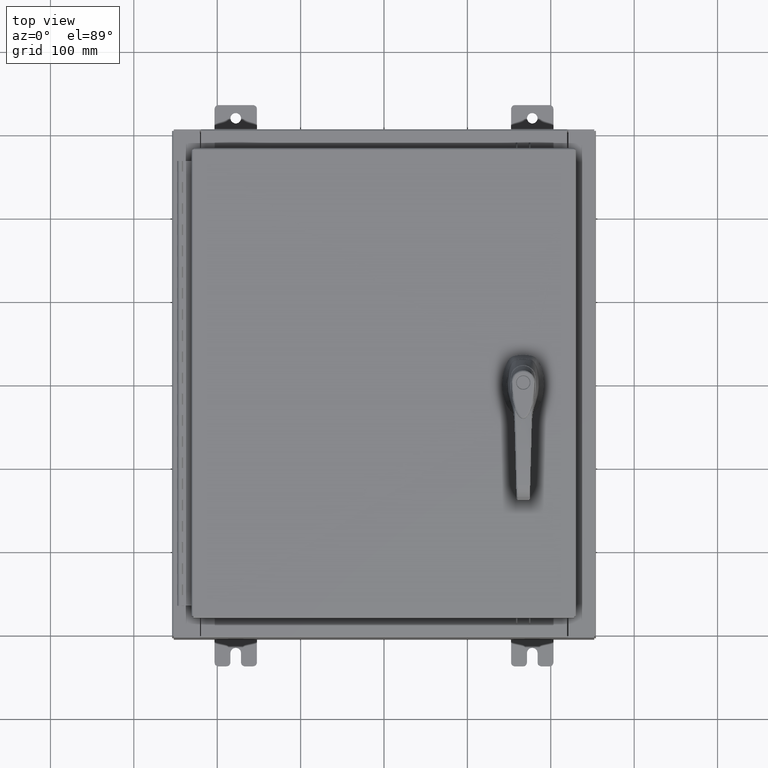
[diagram: clean part render]
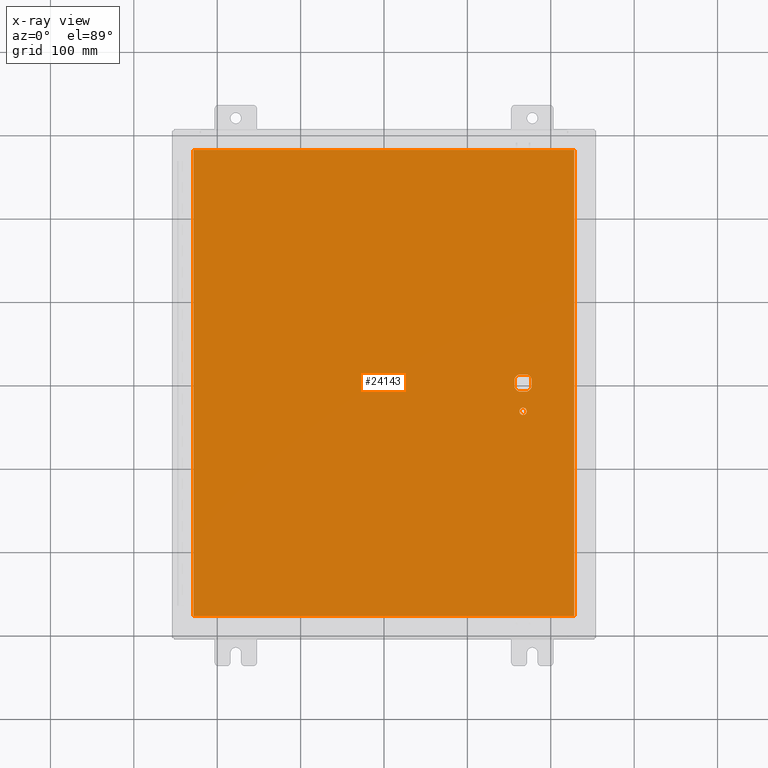
[diagram: x-ray — body ghosted, one internal face saturated and labeled with its STEP entity id]
A machine part, top view, then the same camera in x-ray: the body is ghosted and one INTERNAL B-rep face — a face not visible from any outside direction — is saturated and labeled: STEP entity #24143.
In plain terms, the highlighted planar face has unit normal (0, 0, -1).
Its self-contained STEP definition (entity closure, byte-faithful):
#430 = VECTOR ( 'NONE', #83718, 39.37007874015748100 ) ;
#664 = DIRECTION ( 'NONE',  ( -0.0000000000000000000, -0.0000000000000000000, 1.000000000000000000 ) ) ;
#851 = EDGE_CURVE ( 'NONE', #79211, #57351, #22076, .T. ) ;
#1527 = EDGE_CURVE ( 'NONE', #104537, #16535, #100204, .T. ) ;
#1552 = VECTOR ( 'NONE', #57092, 39.37007874015748100 ) ;
#4109 = EDGE_CURVE ( 'NONE', #53771, #105646, #69650, .T. ) ;
#5771 = DIRECTION ( 'NONE',  ( -1.000000000000000000, 0.0000000000000000000, -0.0000000000000000000 ) ) ;
#11666 = CARTESIAN_POINT ( 'NONE',  ( 6.749499999999998500, -1.338000000000000100, -0.07470000000000003000 ) ) ;
#12451 = EDGE_CURVE ( 'NONE', #105646, #69104, #37058, .T. ) ;
#13335 = FACE_OUTER_BOUND ( 'NONE', #55856, .T. ) ;
#13894 = ORIENTED_EDGE ( 'NONE', *, *, #46579, .F. ) ;
#14673 = EDGE_LOOP ( 'NONE', ( #39905, #27111, #73608, #61158, #56399, #78134, #95474, #66617 ) ) ;
#16535 = VERTEX_POINT ( 'NONE', #67892 ) ;
#17449 = VERTEX_POINT ( 'NONE', #11666 ) ;
#18328 = DIRECTION ( 'NONE',  ( -0.0000000000000000000, -0.0000000000000000000, 1.000000000000000000 ) ) ;
#18975 = AXIS2_PLACEMENT_3D ( 'NONE', #53118, #664, #61918 ) ;
#19230 = CARTESIAN_POINT ( 'NONE',  ( 6.577999999999998500, 0.0000000000000000000, -0.07470000000000003000 ) ) ;
#21080 = LINE ( 'NONE', #42783, #111708 ) ;
#22076 = LINE ( 'NONE', #33792, #1552 ) ;
#22853 = LINE ( 'NONE', #104713, #95589 ) ;
#24143 = ADVANCED_FACE ( 'NONE', ( #36676, #13335, #106700 ), #101627, .T. ) ;
#25422 = DIRECTION ( 'NONE',  ( -0.0000000000000000000, -0.0000000000000000000, 1.000000000000000000 ) ) ;
#25876 = CARTESIAN_POINT ( 'NONE',  ( 8.990299999999997700, -11.00630000000000000, -0.07470000000000021100 ) ) ;
#27111 = ORIENTED_EDGE ( 'NONE', *, *, #59756, .F. ) ;
#28044 = DIRECTION ( 'NONE',  ( -1.000000000000000000, 0.0000000000000000000, 0.0000000000000000000 ) ) ;
#29436 = CARTESIAN_POINT ( 'NONE',  ( 6.980999999999924400, 0.2002273707563080300, -0.07470000000000003000 ) ) ;
#31505 = AXIS2_PLACEMENT_3D ( 'NONE', #103066, #50488, #111885 ) ;
#31620 = LINE ( 'NONE', #49703, #98823 ) ;
#32010 = CARTESIAN_POINT ( 'NONE',  ( 6.377772629243688500, -0.4029999999999250300, -0.07470000000000003000 ) ) ;
#32040 = EDGE_CURVE ( 'NONE', #17449, #32776, #66808, .T. ) ;
#32190 = AXIS2_PLACEMENT_3D ( 'NONE', #34262, #95619, #43040 ) ;
#32776 = VERTEX_POINT ( 'NONE', #69033 ) ;
#33792 = CARTESIAN_POINT ( 'NONE',  ( -8.990300000000001300, -11.00630000000000100, -0.07469999999999910000 ) ) ;
#34262 = CARTESIAN_POINT ( 'NONE',  ( 6.577999999999998500, 0.0000000000000000000, -0.07470000000000003000 ) ) ;
#34685 = DIRECTION ( 'NONE',  ( 0.0000000000000000000, 1.000000000000000000, 0.0000000000000000000 ) ) ;
#35624 = CARTESIAN_POINT ( 'NONE',  ( 6.175000000000072700, -0.2002273707563079800, -0.07470000000000003000 ) ) ;
#36676 = FACE_BOUND ( 'NONE', #103046, .T. ) ;
#37058 = LINE ( 'NONE', #100789, #80974 ) ;
#37479 = CARTESIAN_POINT ( 'NONE',  ( -8.990299999999997700, -11.00630000000000100, -0.07470000000000000300 ) ) ;
#37948 = CIRCLE ( 'NONE', #32190, 0.4499999999999156900 ) ;
#39905 = ORIENTED_EDGE ( 'NONE', *, *, #51026, .T. ) ;
#40622 = CARTESIAN_POINT ( 'NONE',  ( 0.0000000000000000000, 0.0000000000000000000, -0.07470000000000000300 ) ) ;
#40631 = VECTOR ( 'NONE', #34685, 39.37007874015748100 ) ;
#42783 = CARTESIAN_POINT ( 'NONE',  ( -8.990299999999999500, 11.00630000000000100, -0.07470000000000019700 ) ) ;
#43040 = DIRECTION ( 'NONE',  ( -1.000000000000000000, 0.0000000000000000000, 0.0000000000000000000 ) ) ;
#44221 = AXIS2_PLACEMENT_3D ( 'NONE', #70878, #18328, #79682 ) ;
#46096 = LINE ( 'NONE', #25876, #40631 ) ;
#46579 = EDGE_CURVE ( 'NONE', #16535, #79211, #21080, .T. ) ;
#46968 = LINE ( 'NONE', #57614, #430 ) ;
#47090 = AXIS2_PLACEMENT_3D ( 'NONE', #77967, #25422, #86789 ) ;
#48135 = VERTEX_POINT ( 'NONE', #85450 ) ;
#48200 = DIRECTION ( 'NONE',  ( 1.000000000000000000, 0.0000000000000000000, 0.0000000000000000000 ) ) ;
#49703 = CARTESIAN_POINT ( 'NONE',  ( 6.175000000000072700, 0.0000000000000000000, -0.07470000000000003000 ) ) ;
#50488 = DIRECTION ( 'NONE',  ( -0.0000000000000000000, -0.0000000000000000000, 1.000000000000000000 ) ) ;
#50957 = CIRCLE ( 'NONE', #89427, 0.4499999999999156900 ) ;
#51026 = EDGE_CURVE ( 'NONE', #69104, #48135, #50957, .T. ) ;
#51626 = DIRECTION ( 'NONE',  ( 0.0000000000000000000, -1.000000000000000000, 0.0000000000000000000 ) ) ;
#53118 = CARTESIAN_POINT ( 'NONE',  ( 6.577999999999998500, -1.338000000000000100, -0.07470000000000003000 ) ) ;
#53458 = ORIENTED_EDGE ( 'NONE', *, *, #109512, .F. ) ;
#53771 = VERTEX_POINT ( 'NONE', #35624 ) ;
#55245 = CIRCLE ( 'NONE', #18975, 0.1715000000000000700 ) ;
#55856 = EDGE_LOOP ( 'NONE', ( #53458, #90766, #13894, #103521 ) ) ;
#56399 = ORIENTED_EDGE ( 'NONE', *, *, #82009, .T. ) ;
#57092 = DIRECTION ( 'NONE',  ( 1.000000000000000000, -0.0000000000000000000, -0.0000000000000000000 ) ) ;
#57351 = VERTEX_POINT ( 'NONE', #110071 ) ;
#57392 = CARTESIAN_POINT ( 'NONE',  ( 8.990299999999997700, 11.00630000000000000, -0.07470000000000000300 ) ) ;
#57614 = CARTESIAN_POINT ( 'NONE',  ( 6.980999999999924400, 0.0000000000000000000, -0.07470000000000003000 ) ) ;
#58149 = CARTESIAN_POINT ( 'NONE',  ( 8.990299999999999500, 11.00630000000000000, -0.07470000000000019700 ) ) ;
#58257 = DIRECTION ( 'NONE',  ( 0.0000000000000000000, 0.0000000000000000000, -1.000000000000000000 ) ) ;
#59756 = EDGE_CURVE ( 'NONE', #88056, #48135, #46968, .T. ) ;
#61158 = ORIENTED_EDGE ( 'NONE', *, *, #94175, .T. ) ;
#61918 = DIRECTION ( 'NONE',  ( -1.000000000000000000, 0.0000000000000000000, 0.0000000000000000000 ) ) ;
#62008 = VERTEX_POINT ( 'NONE', #76297 ) ;
#62515 = EDGE_CURVE ( 'NONE', #62008, #53771, #31620, .T. ) ;
#62545 = CARTESIAN_POINT ( 'NONE',  ( 6.778227370756308500, -0.4029999999999252000, -0.07470000000000003000 ) ) ;
#66617 = ORIENTED_EDGE ( 'NONE', *, *, #12451, .T. ) ;
#66808 = CIRCLE ( 'NONE', #47090, 0.1715000000000000700 ) ;
#67892 = CARTESIAN_POINT ( 'NONE',  ( -8.990299999999999500, 11.00630000000000000, -0.07470000000000000300 ) ) ;
#68164 = EDGE_CURVE ( 'NONE', #88056, #79483, #75613, .T. ) ;
#69033 = CARTESIAN_POINT ( 'NONE',  ( 6.406499999999998500, -1.338000000000000100, -0.07470000000000003000 ) ) ;
#69104 = VERTEX_POINT ( 'NONE', #62545 ) ;
#69650 = CIRCLE ( 'NONE', #44221, 0.4499999999999156900 ) ;
#70878 = CARTESIAN_POINT ( 'NONE',  ( 6.577999999999998500, 0.0000000000000000000, -0.07470000000000003000 ) ) ;
#72217 = ORIENTED_EDGE ( 'NONE', *, *, #32040, .T. ) ;
#73608 = ORIENTED_EDGE ( 'NONE', *, *, #68164, .T. ) ;
#75613 = CIRCLE ( 'NONE', #31505, 0.4499999999999156900 ) ;
#76297 = CARTESIAN_POINT ( 'NONE',  ( 6.175000000000072700, 0.2002273707563080300, -0.07470000000000003000 ) ) ;
#76891 = VECTOR ( 'NONE', #88630, 39.37007874015748100 ) ;
#77967 = CARTESIAN_POINT ( 'NONE',  ( 6.577999999999998500, -1.338000000000000100, -0.07470000000000003000 ) ) ;
#78134 = ORIENTED_EDGE ( 'NONE', *, *, #62515, .T. ) ;
#78406 = AXIS2_PLACEMENT_3D ( 'NONE', #40622, #58257, #5771 ) ;
#79211 = VERTEX_POINT ( 'NONE', #37479 ) ;
#79483 = VERTEX_POINT ( 'NONE', #83879 ) ;
#79682 = DIRECTION ( 'NONE',  ( -1.000000000000000000, 8.881784197001256300E-016, 0.0000000000000000000 ) ) ;
#80591 = DIRECTION ( 'NONE',  ( -0.0000000000000000000, -0.0000000000000000000, 1.000000000000000000 ) ) ;
#80974 = VECTOR ( 'NONE', #48200, 39.37007874015748100 ) ;
#82009 = EDGE_CURVE ( 'NONE', #84375, #62008, #37948, .T. ) ;
#83718 = DIRECTION ( 'NONE',  ( 0.0000000000000000000, -1.000000000000000000, 0.0000000000000000000 ) ) ;
#83879 = CARTESIAN_POINT ( 'NONE',  ( 6.778227370756308500, 0.4029999999999250300, -0.07470000000000003000 ) ) ;
#84375 = VERTEX_POINT ( 'NONE', #95407 ) ;
#85450 = CARTESIAN_POINT ( 'NONE',  ( 6.980999999999924400, -0.2002273707563080300, -0.07470000000000003000 ) ) ;
#86789 = DIRECTION ( 'NONE',  ( -1.000000000000000000, 0.0000000000000000000, 0.0000000000000000000 ) ) ;
#88056 = VERTEX_POINT ( 'NONE', #29436 ) ;
#88472 = EDGE_CURVE ( 'NONE', #32776, #17449, #55245, .T. ) ;
#88630 = DIRECTION ( 'NONE',  ( -1.000000000000000000, -0.0000000000000000000, -0.0000000000000000000 ) ) ;
#89427 = AXIS2_PLACEMENT_3D ( 'NONE', #19230, #80591, #28044 ) ;
#90766 = ORIENTED_EDGE ( 'NONE', *, *, #851, .F. ) ;
#94175 = EDGE_CURVE ( 'NONE', #79483, #84375, #22853, .T. ) ;
#95407 = CARTESIAN_POINT ( 'NONE',  ( 6.377772629243688500, 0.4029999999999252000, -0.07470000000000003000 ) ) ;
#95474 = ORIENTED_EDGE ( 'NONE', *, *, #4109, .T. ) ;
#95589 = VECTOR ( 'NONE', #95866, 39.37007874015748100 ) ;
#95619 = DIRECTION ( 'NONE',  ( -0.0000000000000000000, -0.0000000000000000000, 1.000000000000000000 ) ) ;
#95866 = DIRECTION ( 'NONE',  ( -1.000000000000000000, 0.0000000000000000000, 0.0000000000000000000 ) ) ;
#98823 = VECTOR ( 'NONE', #111083, 39.37007874015748100 ) ;
#100204 = LINE ( 'NONE', #58149, #76891 ) ;
#100789 = CARTESIAN_POINT ( 'NONE',  ( 0.0000000000000000000, -0.4029999999999252000, -0.07470000000000003000 ) ) ;
#101627 = PLANE ( 'NONE',  #78406 ) ;
#103046 = EDGE_LOOP ( 'NONE', ( #72217, #107557 ) ) ;
#103066 = CARTESIAN_POINT ( 'NONE',  ( 6.577999999999998500, 0.0000000000000000000, -0.07470000000000003000 ) ) ;
#103521 = ORIENTED_EDGE ( 'NONE', *, *, #1527, .F. ) ;
#104537 = VERTEX_POINT ( 'NONE', #57392 ) ;
#104713 = CARTESIAN_POINT ( 'NONE',  ( 0.0000000000000000000, 0.4029999999999252000, -0.07470000000000003000 ) ) ;
#105646 = VERTEX_POINT ( 'NONE', #32010 ) ;
#106700 = FACE_BOUND ( 'NONE', #14673, .T. ) ;
#107557 = ORIENTED_EDGE ( 'NONE', *, *, #88472, .T. ) ;
#109512 = EDGE_CURVE ( 'NONE', #57351, #104537, #46096, .T. ) ;
#110071 = CARTESIAN_POINT ( 'NONE',  ( 8.990299999999997700, -11.00630000000000000, -0.07470000000000000300 ) ) ;
#111083 = DIRECTION ( 'NONE',  ( 0.0000000000000000000, -1.000000000000000000, 0.0000000000000000000 ) ) ;
#111708 = VECTOR ( 'NONE', #51626, 39.37007874015748100 ) ;
#111885 = DIRECTION ( 'NONE',  ( -1.000000000000000000, 0.0000000000000000000, 0.0000000000000000000 ) ) ;